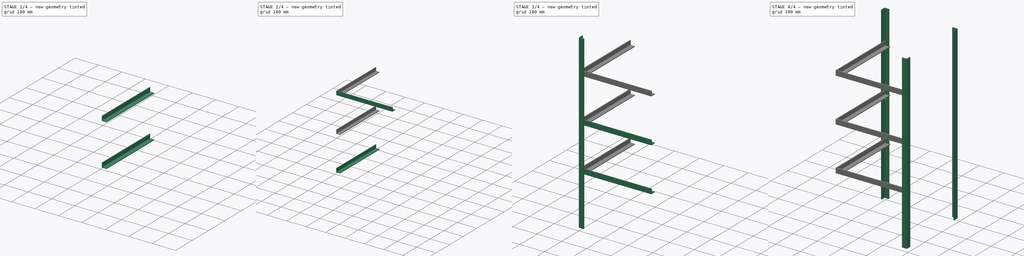
[diagram: build sequence overview — one tinted view per stage of 4, left to right]
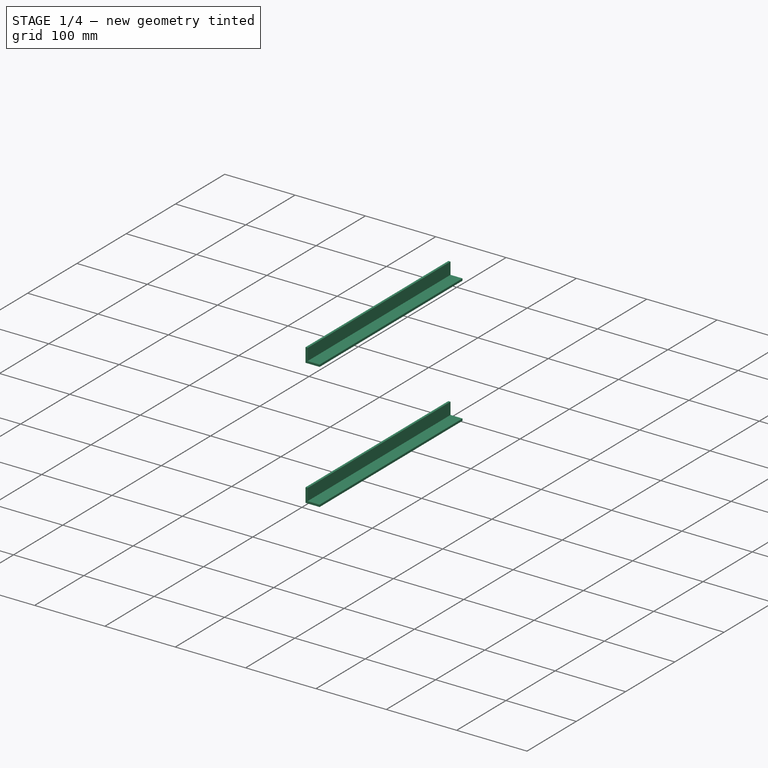
[diagram: stage 1 of 4 — iso view after this stage's code; geometry added in this stage tinted green]
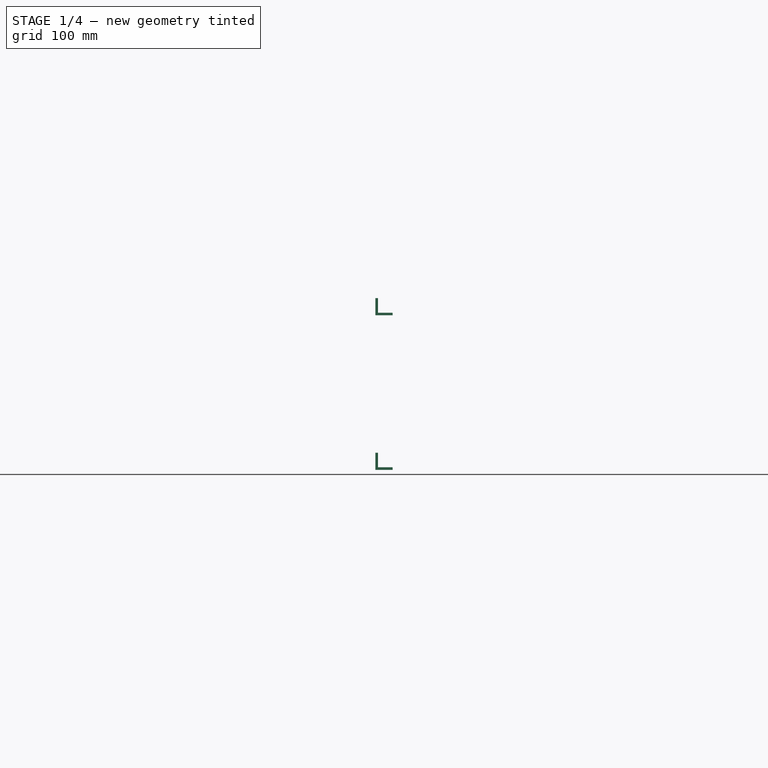
[diagram: stage 1 of 4 — front view after this stage's code; geometry added in this stage tinted green]
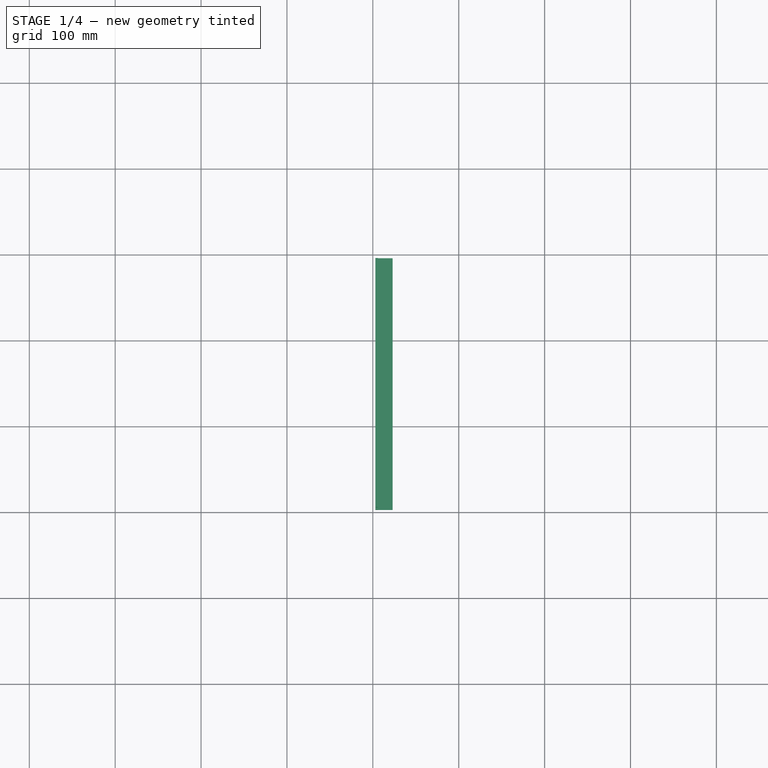
[diagram: stage 1 of 4 — top view after this stage's code; geometry added in this stage tinted green]
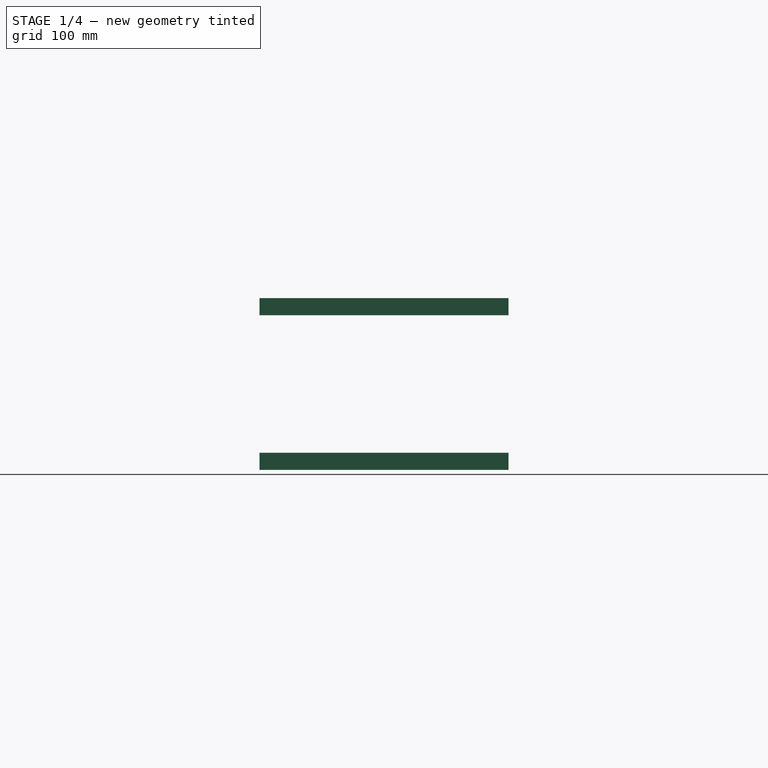
[diagram: stage 1 of 4 — right view after this stage's code; geometry added in this stage tinted green]
FCSTD DOCUMENT  (FreeCAD 0.18R16131 (Git))
Label: module
License: All rights reserved
LicenseURL: http://en.wikipedia.org/wiki/All_rights_reserved
objects: PartDesign::Body×12, PartDesign::FeatureBase×9, Sketcher::SketchObject×3, PartDesign::Pad×3, App::DocumentObjectGroup×3
note: 30 computed .brp shape members not serialized (recipe doc carries the construction recipe); baked Part::Feature solids carry a one-line shape summary decoded from their .brp

FEATURE [PartDesign::Body] Body007  label="grilleL3"
  BaseFeature = -> Body004
  Group = -> [Clone005]
  Origin = -> Origin007
  Tip = -> Clone005
FEATURE [App::DocumentObjectGroup] Group001  label="largeur"
  Group = -> [Body004,Body005,Body006,Body007]
FEATURE [Sketcher::SketchObject] Sketch002
  MapMode = 5
  Placement = pos=(3,293,0) rot=(-1,0,0;4.71239rad)
  sketch-geometry (6):
    g0: LineSegment StartX=0 StartY=20 StartZ=0 EndX=0 EndY=0 EndZ=0
    g1: LineSegment StartX=0 StartY=0 StartZ=0 EndX=20 EndY=0 EndZ=0
    g2: LineSegment StartX=20 StartY=0 StartZ=0 EndX=20 EndY=3 EndZ=0
    g3: LineSegment StartX=20 StartY=3 StartZ=0 EndX=3 EndY=3 EndZ=0
    g4: LineSegment StartX=3 StartY=3 StartZ=0 EndX=3 EndY=20 EndZ=0
    g5: LineSegment StartX=3 StartY=20 StartZ=0 EndX=0 EndY=20 EndZ=0
  constraints (17):
    c: Horizontal(g1)
    c: Vertical(g2)
    c: Coincident(g2,g3)
    c: Horizontal(g3)
    c: Coincident(g3,g4)
    c: Vertical(g4)
    c: Coincident(g4,g5)
    c: Horizontal(g5)
    c: DistanceX(g5,g5) = 3
    c: DistanceY(g2,g2) = 3
    c: DistanceY(g0,g0) = 20
    c: DistanceX(g1,g1) = 20
    c: Coincident(g0,g5)
    c: Coincident(g0,g1)
    c: Coincident(g1,g2)
    c: Vertical(g0)
    c: Coincident(g0,g-1)
FEATURE [PartDesign::Pad] Pad002
  Length = 290
  Length2 = 290
  Placement = pos=(3,293,0) rot=(-1,0,0;4.71239rad)
  Profile = -> Sketch002
  Type = 0
FEATURE [PartDesign::Body] Body009  label="grilleLon1"
  Group = -> [Clone006]
  Origin = -> Origin009
  Tip = -> Clone006
FEATURE [PartDesign::FeatureBase] Clone007
  BaseFeature = -> Body008
  Placement = pos=(0,0,380) rot=(0,0,1;0rad)
FEATURE [PartDesign::Body] Body010  label="grilleLon2"
  Group = -> [Clone007]
  Origin = -> Origin010
  Tip = -> Clone007
FEATURE [PartDesign::FeatureBase] Clone008
  BaseFeature = -> Body008
  Placement = pos=(0,0,560) rot=(0,0,1;0rad)
FEATURE [PartDesign::Body] Body011  label="grilleLon3"
  Group = -> [Clone008]
  Origin = -> Origin011
  Tip = -> Clone008
FEATURE [App::DocumentObjectGroup] Group002  label="longueur1"
  Group = -> [Body008,Body009,Body010,Body011]
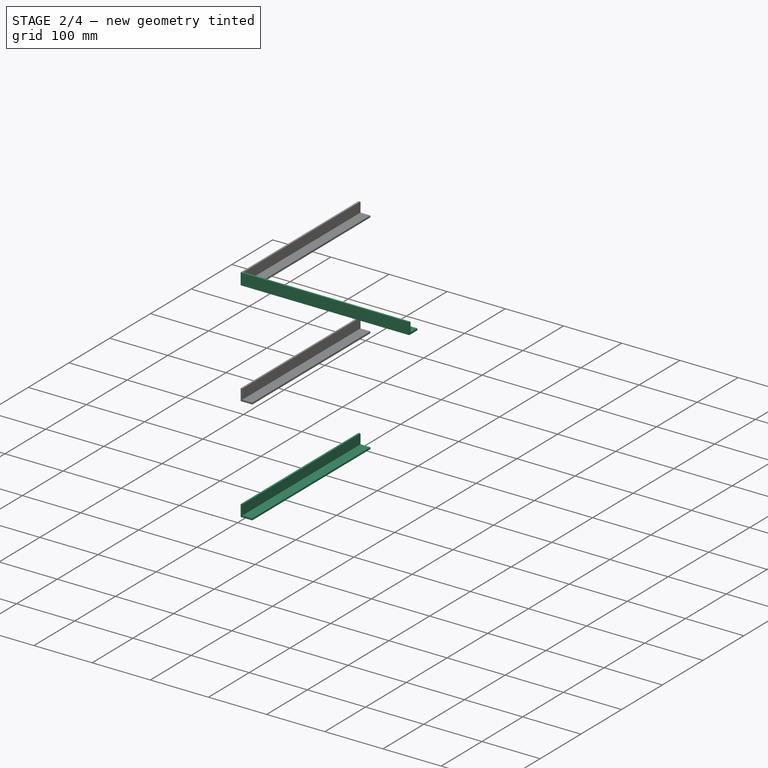
[diagram: stage 2 of 4 — iso view after this stage's code; geometry added in this stage tinted green]
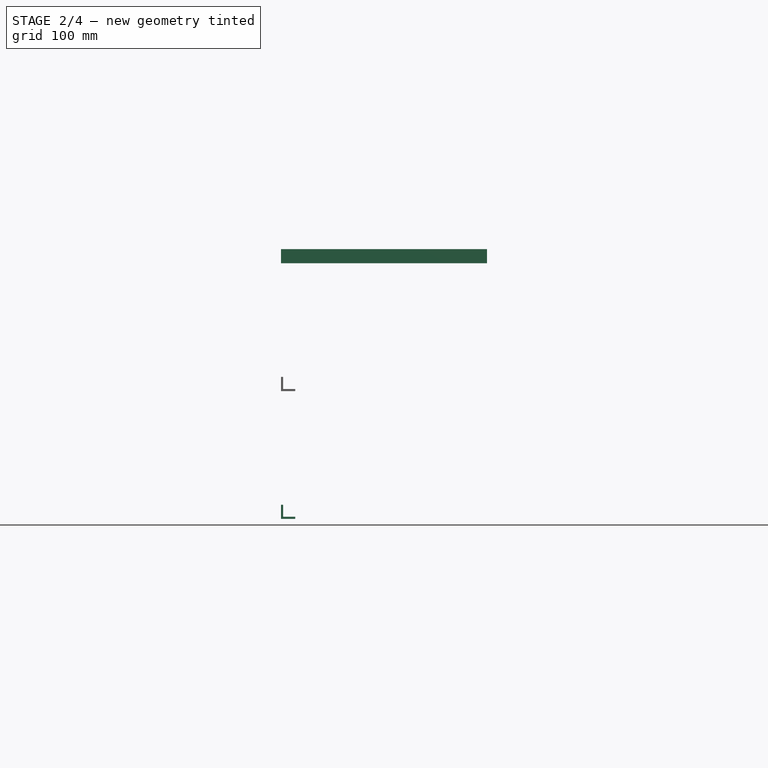
[diagram: stage 2 of 4 — front view after this stage's code; geometry added in this stage tinted green]
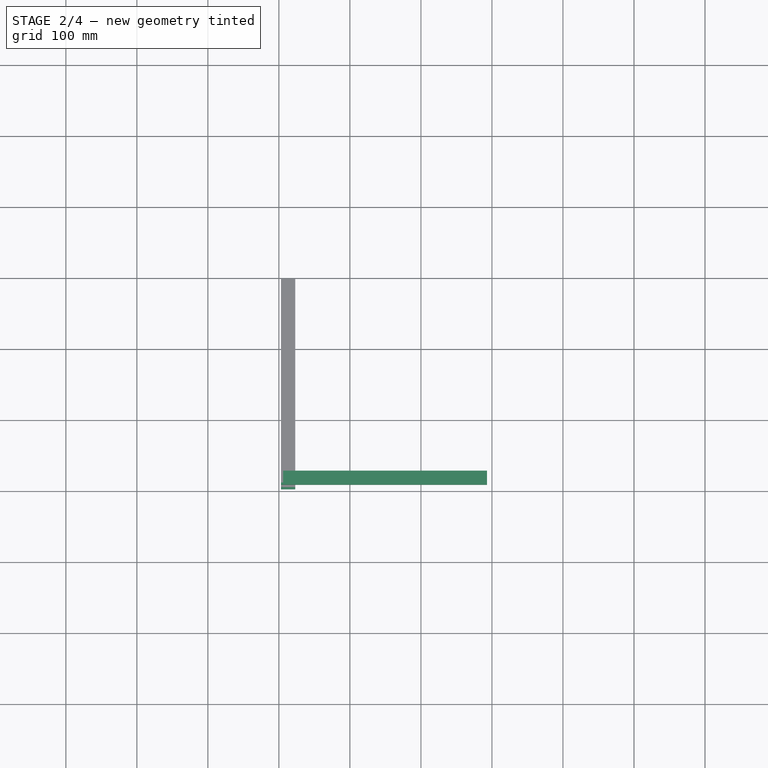
[diagram: stage 2 of 4 — top view after this stage's code; geometry added in this stage tinted green]
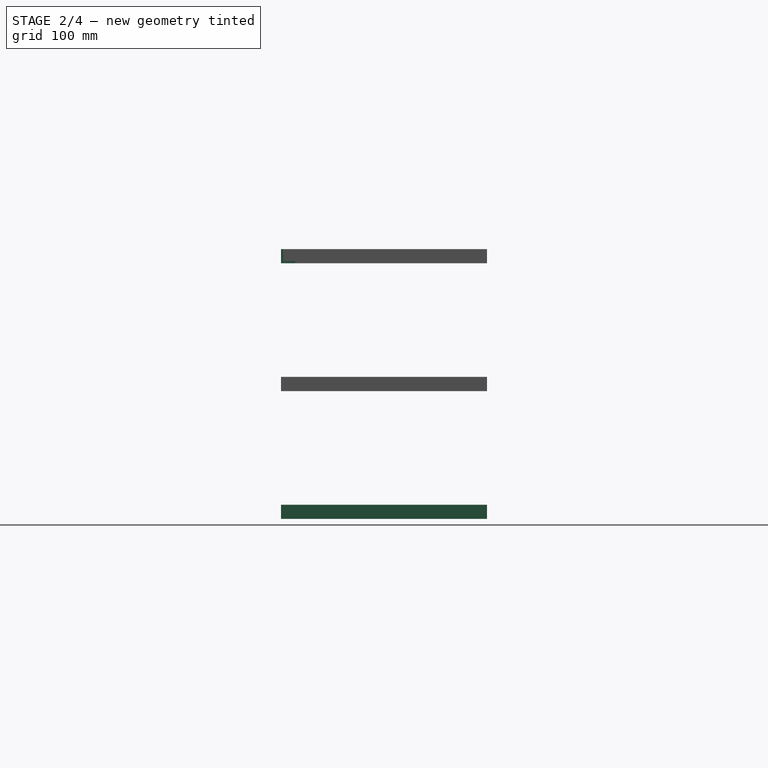
[diagram: stage 2 of 4 — right view after this stage's code; geometry added in this stage tinted green]
FEATURE [PartDesign::Body] Body003
  BaseFeature = -> Body
  Group = -> [Clone002]
  Origin = -> Origin003
  Tip = -> Clone002
FEATURE [App::DocumentObjectGroup] Group  label="corp"
  Group = -> [Body001,Body,Body002,Body003]
FEATURE [Sketcher::SketchObject] Sketch001
  MapMode = 5
  Support = -> [XY_Plane004]
  sketch-geometry (7):
    g0: LineSegment StartX=0 StartY=20 StartZ=0 EndX=0 EndY=0 EndZ=0
    g1: LineSegment StartX=0 StartY=0 StartZ=0 EndX=20 EndY=0 EndZ=0
    g2: LineSegment StartX=20 StartY=0 StartZ=0 EndX=20 EndY=3 EndZ=0
    g3: LineSegment StartX=20 StartY=3 StartZ=0 EndX=3 EndY=3 EndZ=0
    g4: LineSegment StartX=3 StartY=3 StartZ=0 EndX=3 EndY=20 EndZ=0
    g5: LineSegment StartX=3 StartY=20 StartZ=0 EndX=0 EndY=20 EndZ=0
    g6: LineSegment [constr] StartX=135 StartY=37.8151 StartZ=0 EndX=135 EndY=-29.6059 EndZ=0
  constraints (19):
    c: Horizontal(g1)
    c: Vertical(g2)
    c: Coincident(g2,g3)
    c: Horizontal(g3)
    c: Coincident(g3,g4)
    c: Vertical(g4)
    c: Coincident(g4,g5)
    c: Horizontal(g5)
    c: DistanceX(g5,g5) = 3
    c: DistanceY(g2,g2) = 3
    c: DistanceY(g0,g0) = 20
    c: DistanceX(g1,g1) = 20
    c: Vertical(g6)
    c: DistanceX(g0,g6) = 135
    c: Coincident(g0,g5)
    c: Coincident(g0,g1)
    c: Coincident(g1,g2)
    c: Vertical(g0)
    c: Coincident(g0,g-1)
FEATURE [PartDesign::Pad] Pad001
  Length = 290
  Length2 = 100
  Profile = -> Sketch001
  Type = 0
FEATURE [PartDesign::Body] Body006  label="grilleL2"
  BaseFeature = -> Body004
  Group = -> [Clone004]
  Origin = -> Origin006
  Tip = -> Clone004
FEATURE [PartDesign::FeatureBase] Clone005
  BaseFeature = -> Body004
  Placement = pos=(293,3,560) rot=(0,-1,0;1.5708rad)
FEATURE [PartDesign::Body] Body008  label="grilleLon0"
  Group = -> [Sketch002,Pad002]
  Origin = -> Origin008
  Tip = -> Pad002
FEATURE [PartDesign::FeatureBase] Clone006
  BaseFeature = -> Body008
  Placement = pos=(0,0,200) rot=(0,0,1;0rad)
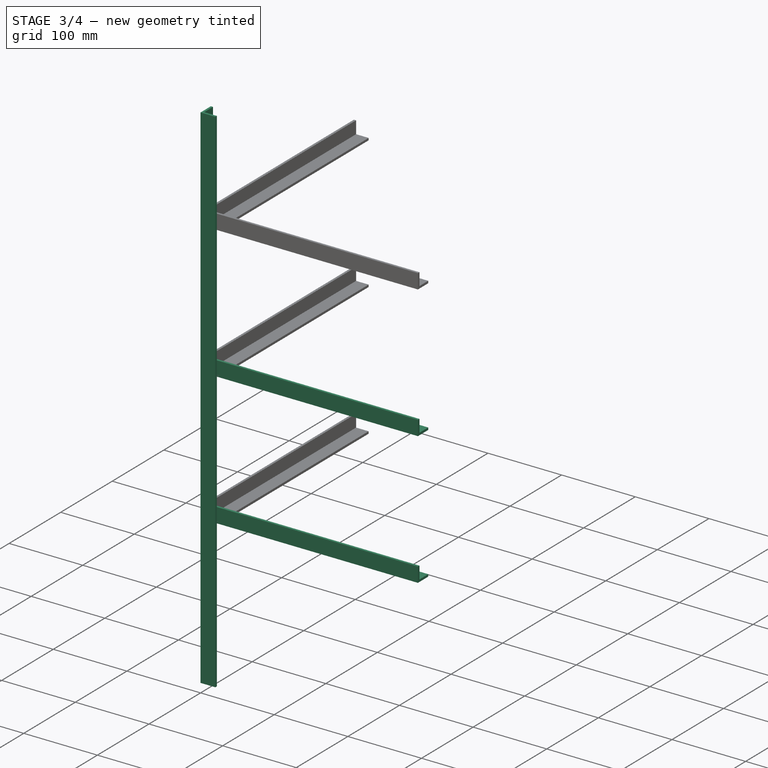
[diagram: stage 3 of 4 — iso view after this stage's code; geometry added in this stage tinted green]
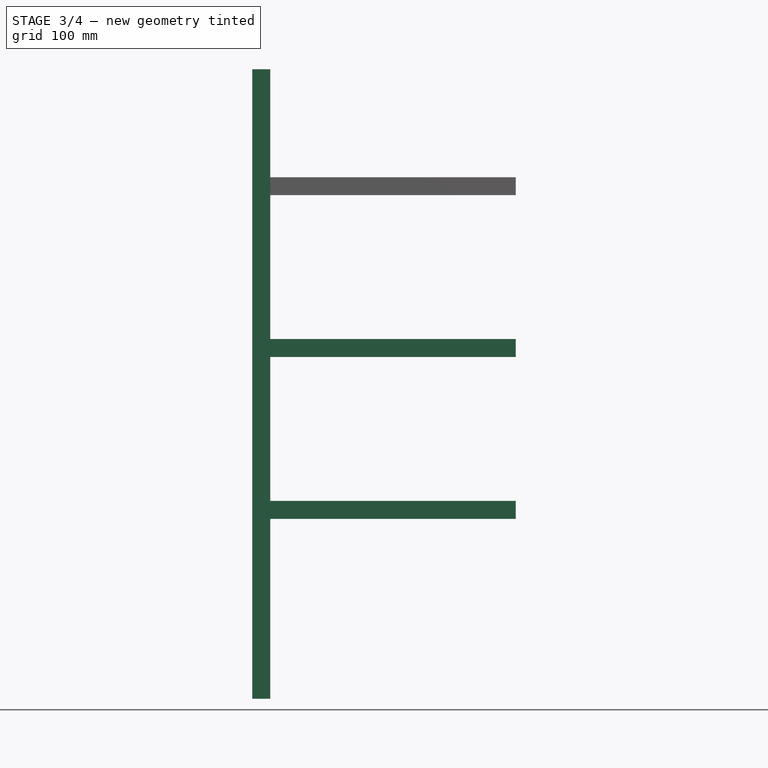
[diagram: stage 3 of 4 — front view after this stage's code; geometry added in this stage tinted green]
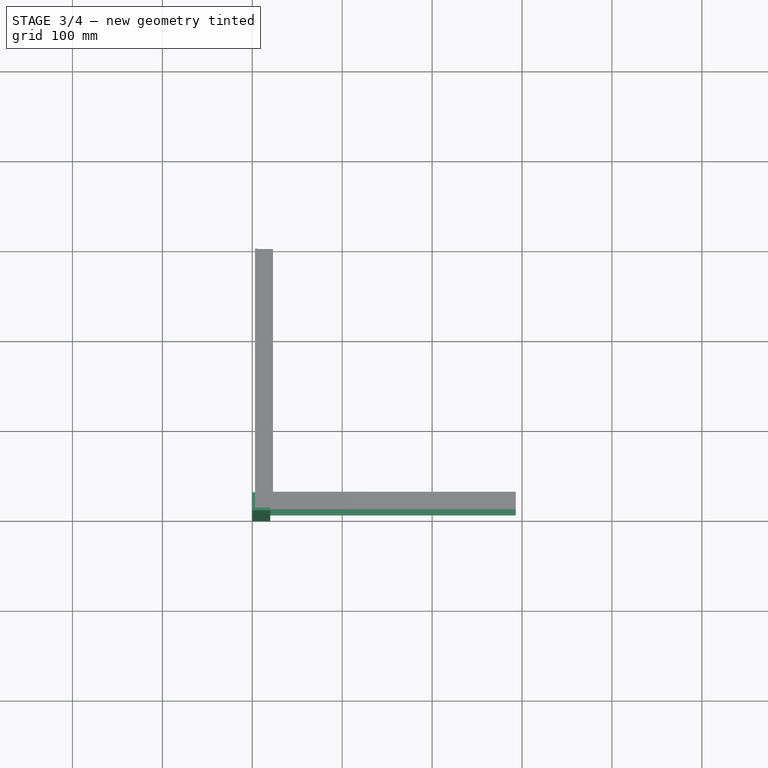
[diagram: stage 3 of 4 — top view after this stage's code; geometry added in this stage tinted green]
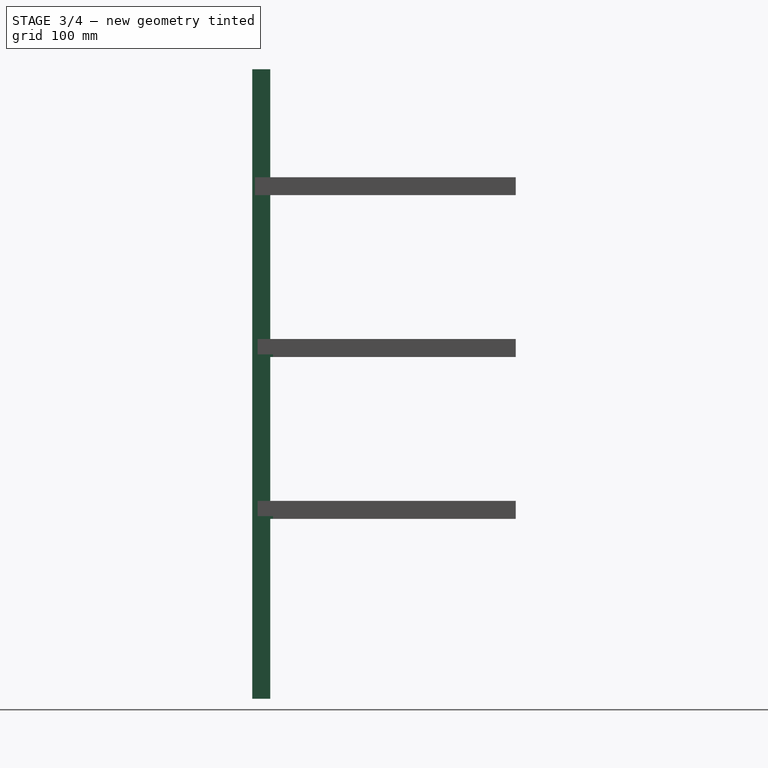
[diagram: stage 3 of 4 — right view after this stage's code; geometry added in this stage tinted green]
FEATURE [Sketcher::SketchObject] Sketch
  MapMode = 5
  Support = -> [XY_Plane]
  sketch-geometry (7):
    g0: LineSegment StartX=0 StartY=20 StartZ=0 EndX=0 EndY=0 EndZ=0
    g1: LineSegment StartX=0 StartY=0 StartZ=0 EndX=20 EndY=0 EndZ=0
    g2: LineSegment StartX=20 StartY=0 StartZ=0 EndX=20 EndY=3 EndZ=0
    g3: LineSegment StartX=20 StartY=3 StartZ=0 EndX=3 EndY=3 EndZ=0
    g4: LineSegment StartX=3 StartY=3 StartZ=0 EndX=3 EndY=20 EndZ=0
    g5: LineSegment StartX=3 StartY=20 StartZ=0 EndX=0 EndY=20 EndZ=0
    g6: LineSegment [constr] StartX=135 StartY=37.8151 StartZ=0 EndX=135 EndY=-29.6059 EndZ=0
  constraints (19):
    c: Horizontal(g1)
    c: Vertical(g2)
    c: Coincident(g2,g3)
    c: Horizontal(g3)
    c: Coincident(g3,g4)
    c: Vertical(g4)
    c: Coincident(g4,g5)
    c: Horizontal(g5)
    c: DistanceX(g5,g5) = 3
    c: DistanceY(g2,g2) = 3
    c: DistanceY(g0,g0) = 20
    c: DistanceX(g1,g1) = 20
    c: Vertical(g6)
    c: DistanceX(g0,g6) = 135
    c: Coincident(g0,g5)
    c: Coincident(g0,g1)
    c: Coincident(g1,g2)
    c: Vertical(g0)
    c: Coincident(g0,g-1)
FEATURE [PartDesign::Pad] Pad
  Length = 700
  Length2 = 100
  Profile = -> Sketch
  Type = 0
FEATURE [PartDesign::Body] Body004  label="grilleL0"
  Group = -> [Sketch001,Pad001]
  Origin = -> Origin004
  Placement = pos=(293,3,0) rot=(0,-1,0;1.5708rad)
  Tip = -> Pad001
FEATURE [PartDesign::FeatureBase] Clone003
  BaseFeature = -> Body004
  Placement = pos=(293,3,200) rot=(0,-1,0;1.5708rad)
FEATURE [PartDesign::Body] Body005  label="grilleL1"
  BaseFeature = -> Body004
  Group = -> [Clone003]
  Origin = -> Origin005
  Tip = -> Clone003
FEATURE [PartDesign::FeatureBase] Clone004
  BaseFeature = -> Body004
  Placement = pos=(293,3,380) rot=(0,-1,0;1.5708rad)
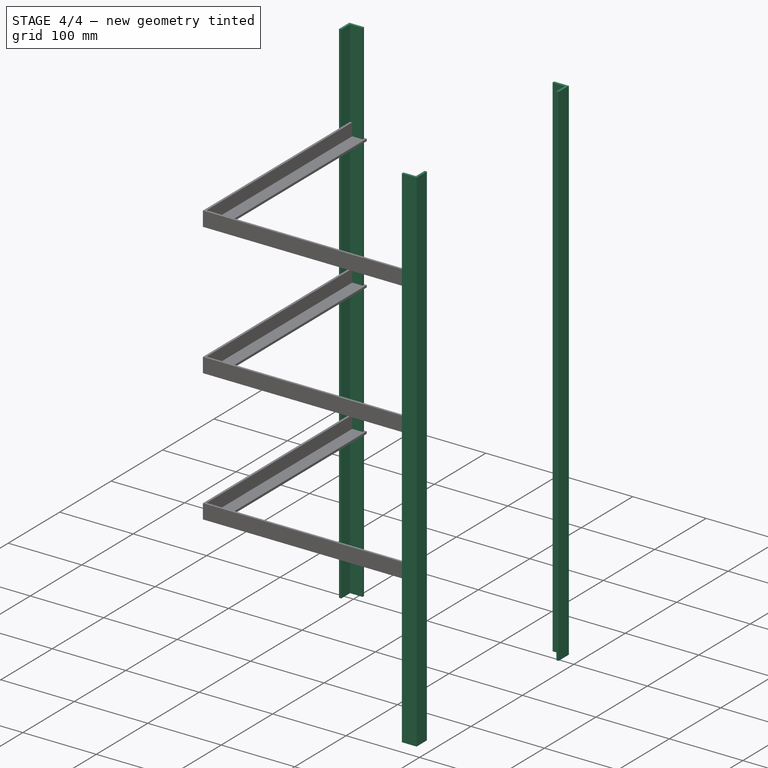
[diagram: stage 4 of 4 — iso view after this stage's code; geometry added in this stage tinted green]
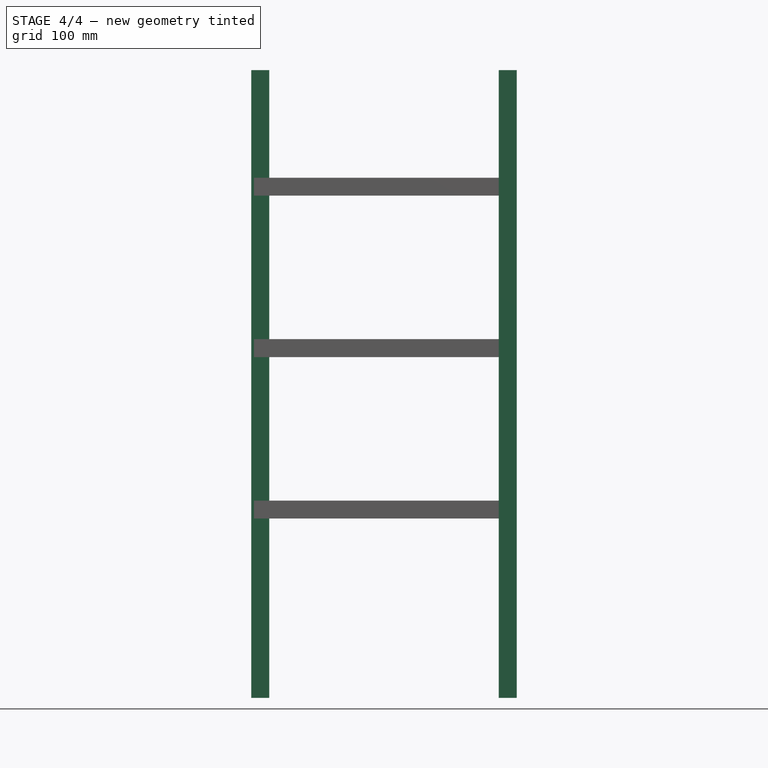
[diagram: stage 4 of 4 — front view after this stage's code; geometry added in this stage tinted green]
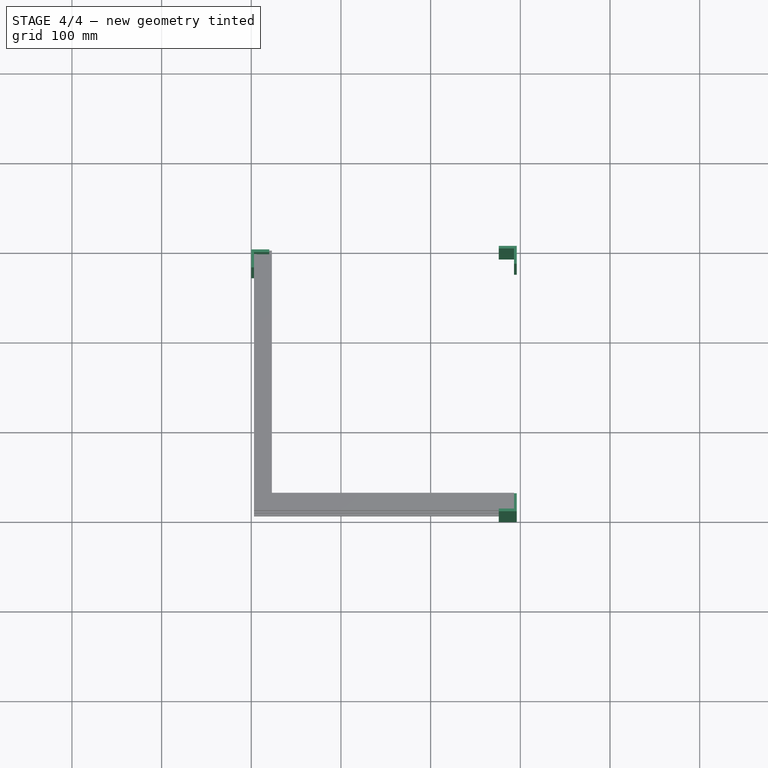
[diagram: stage 4 of 4 — top view after this stage's code; geometry added in this stage tinted green]
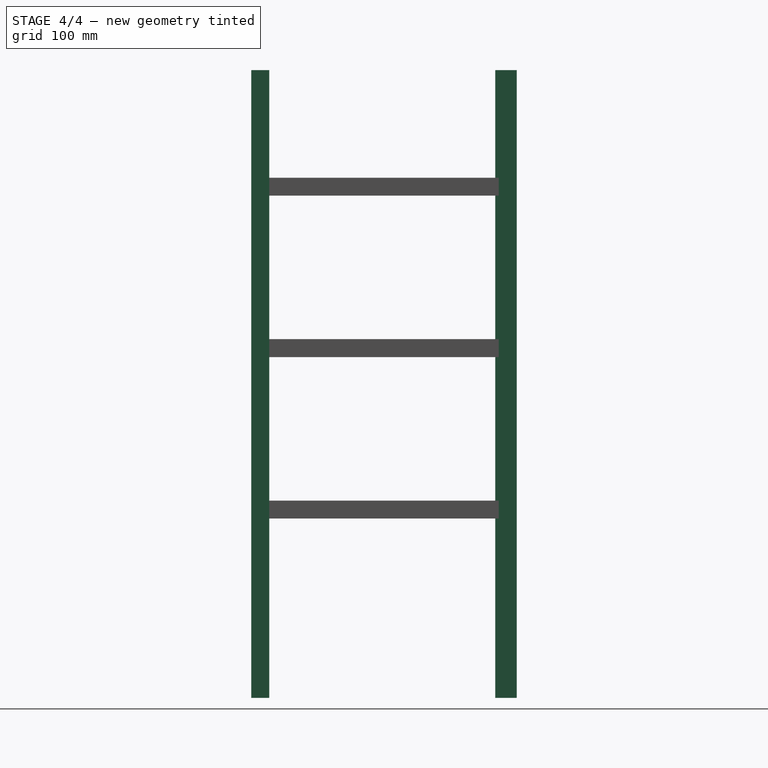
[diagram: stage 4 of 4 — right view after this stage's code; geometry added in this stage tinted green]
FEATURE [PartDesign::Body] Body  label="first"
  Group = -> [Sketch,Pad]
  Origin = -> Origin
  Tip = -> Pad
FEATURE [PartDesign::FeatureBase] Clone
  BaseFeature = -> Pad
  Placement = pos=(296,1.2e-14,0) rot=(0,0,1;1.5708rad)
FEATURE [PartDesign::Body] Body001
  BaseFeature = -> Pad
  Group = -> [Clone]
  Origin = -> Origin001
  Tip = -> Clone
FEATURE [PartDesign::FeatureBase] Clone001
  BaseFeature = -> Body
  Placement = pos=(3.5e-14,292,0) rot=(0,0,-1;1.5708rad)
FEATURE [PartDesign::Body] Body002
  BaseFeature = -> Body
  Group = -> [Clone001]
  Origin = -> Origin002
  Tip = -> Clone001
FEATURE [PartDesign::FeatureBase] Clone002
  BaseFeature = -> Body
  Placement = pos=(296,296,0) rot=(0,0,1;3.14159rad)
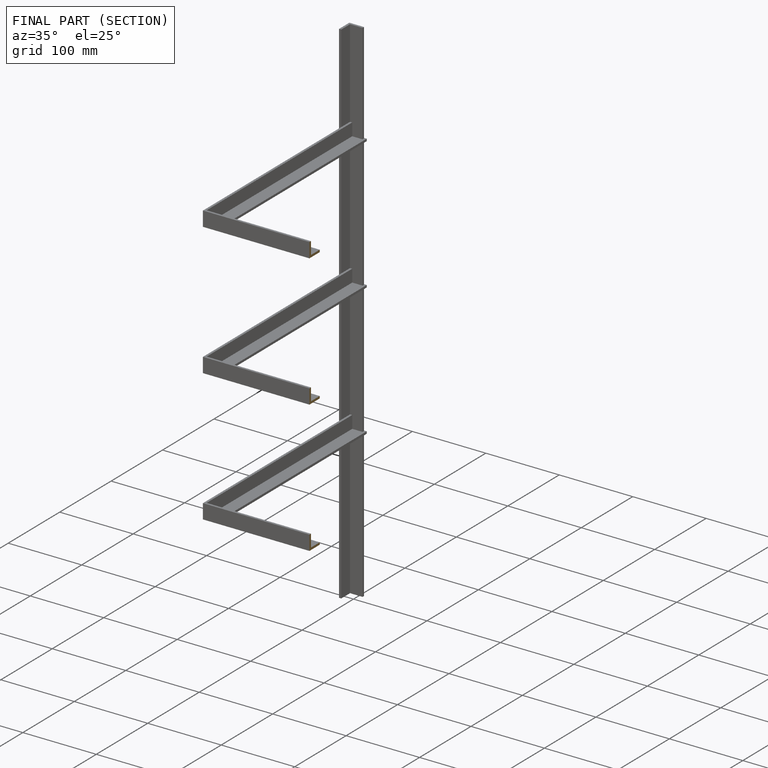
[diagram: finished part — half-section view (interior)]
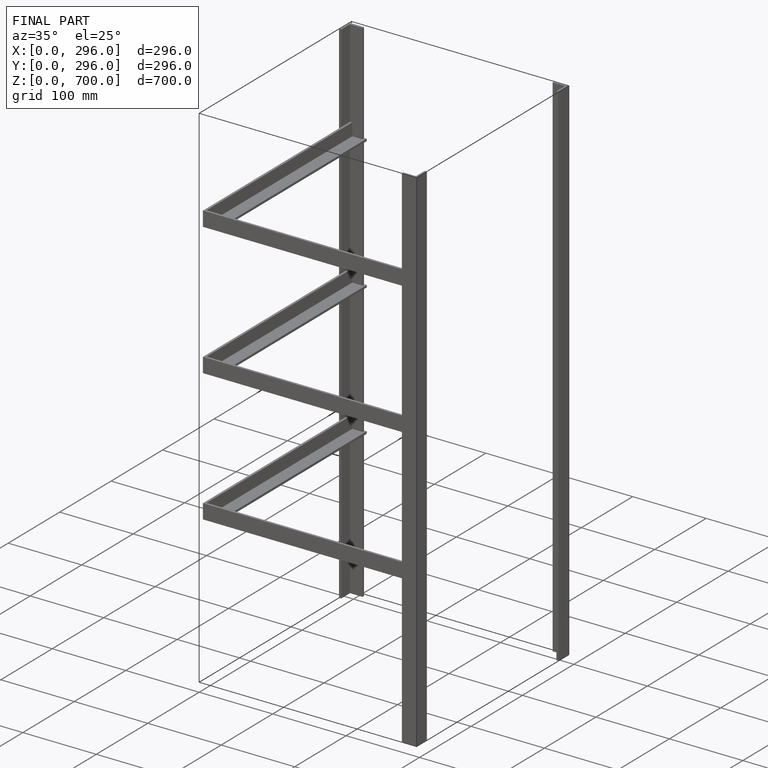
[diagram: finished part — iso view with bounding-box wireframe]
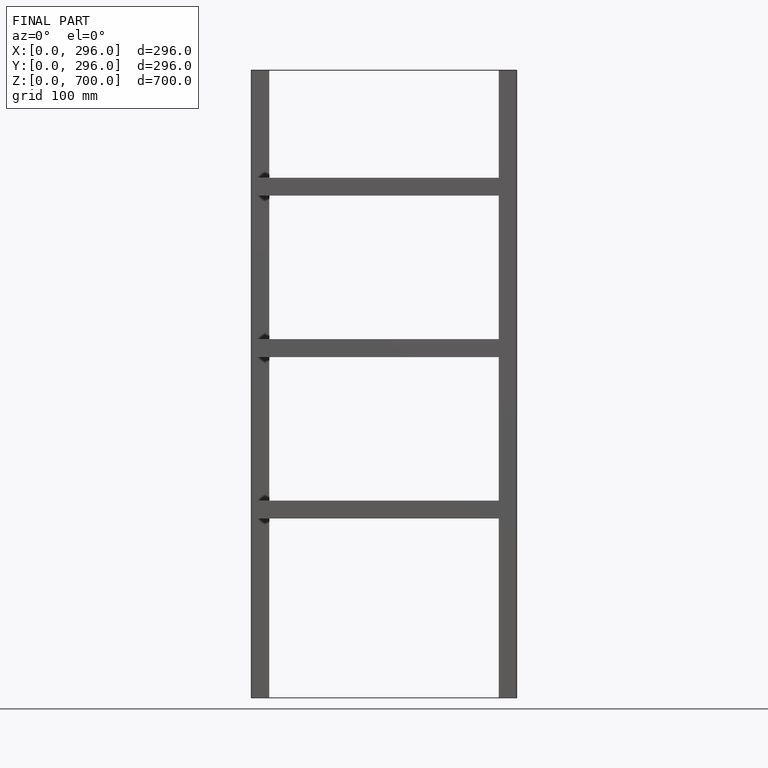
[diagram: finished part — front view with bounding-box wireframe]
